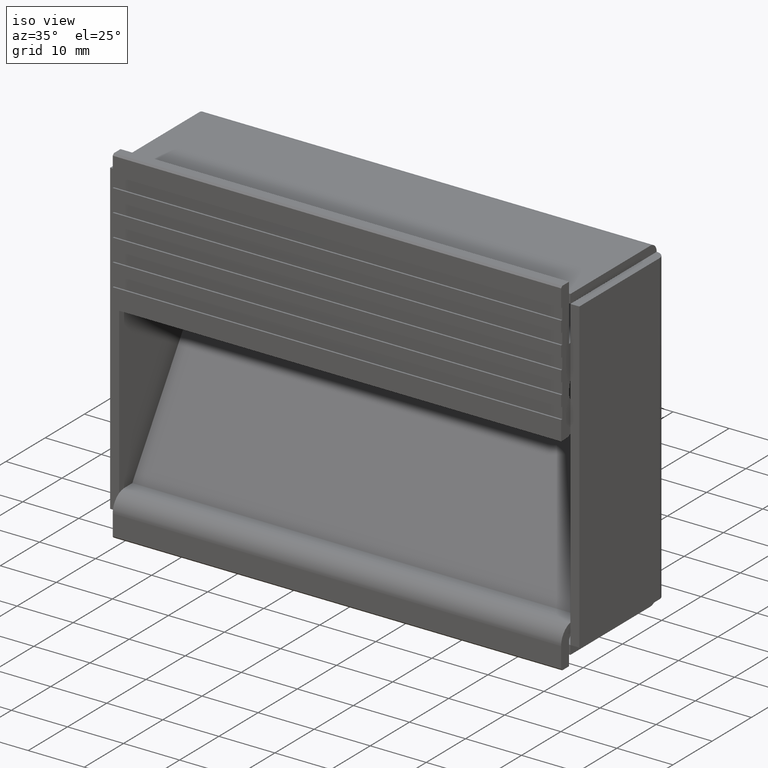
[diagram: clean part render]
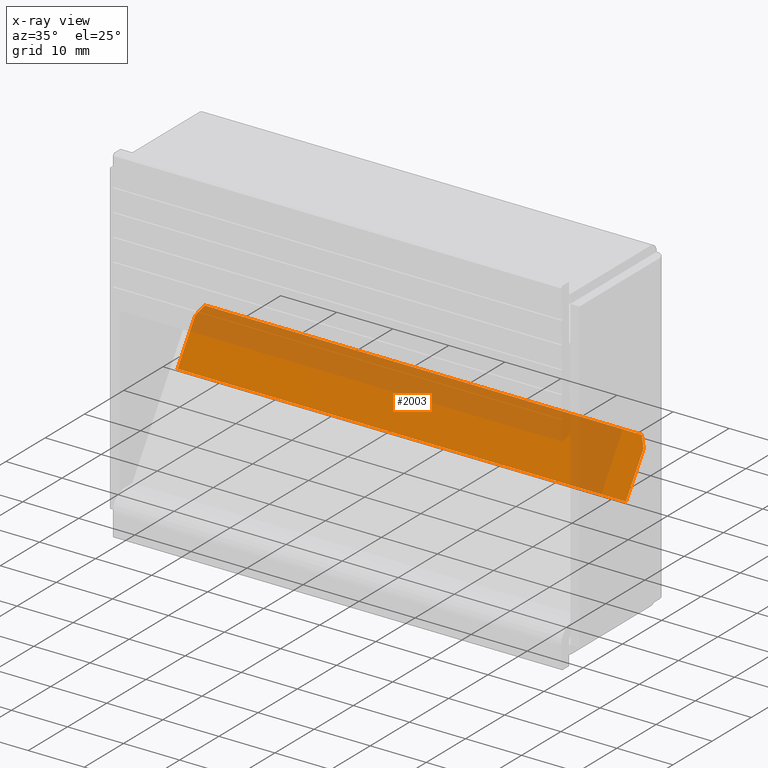
[diagram: x-ray — body ghosted, one internal face saturated and labeled with its STEP entity id]
A machine part, iso view, then the same camera in x-ray: the body is ghosted and one INTERNAL B-rep face — a face not visible from any outside direction — is saturated and labeled: STEP entity #2003.
In plain terms, the highlighted face is a freeform B-spline surface patch.
Its self-contained STEP definition (entity closure, byte-faithful):
#793=CARTESIAN_POINT('',(-40.0,19.0,27.872124824764750));
#794=VERTEX_POINT('',#793);
#795=CARTESIAN_POINT('',(-39.0,20.0,29.405457999999950));
#796=VERTEX_POINT('',#795);
#797=CARTESIAN_POINT('',(-40.0,19.0,27.872124824764750));
#798=CARTESIAN_POINT('',(-39.0,20.0,29.405457999999950));
#799=QUASI_UNIFORM_CURVE('',1,(#797,#798),.UNSPECIFIED.,.F.,.U.);
#800=EDGE_CURVE('',#794,#796,#799,.T.);
#865=CARTESIAN_POINT('',(39.0,20.0,29.405457999999999));
#866=VERTEX_POINT('',#865);
#867=CARTESIAN_POINT('',(40.0,19.0,27.872124824764800));
#868=VERTEX_POINT('',#867);
#869=CARTESIAN_POINT('',(39.0,20.0,29.405457999999999));
#870=CARTESIAN_POINT('',(40.0,19.0,27.872124824764800));
#871=QUASI_UNIFORM_CURVE('',1,(#869,#870),.UNSPECIFIED.,.F.,.U.);
#872=EDGE_CURVE('',#866,#868,#871,.T.);
#945=CARTESIAN_POINT('',(40.0,14.518179000000099,21.0));
#946=VERTEX_POINT('',#945);
#952=CARTESIAN_POINT('',(40.0,14.518179000000099,21.0));
#953=CARTESIAN_POINT('',(40.0,19.0,27.872124824764800));
#954=QUASI_UNIFORM_CURVE('',1,(#952,#953),.UNSPECIFIED.,.F.,.U.);
#955=EDGE_CURVE('',#946,#868,#954,.T.);
#1368=CARTESIAN_POINT('',(-40.0,14.518179000000099,21.0));
#1369=VERTEX_POINT('',#1368);
#1786=CARTESIAN_POINT('',(-40.0,14.518179000000099,21.0));
#1787=CARTESIAN_POINT('',(-40.0,19.0,27.872124824764750));
#1788=QUASI_UNIFORM_CURVE('',1,(#1786,#1787),.UNSPECIFIED.,.F.,.U.);
#1789=EDGE_CURVE('',#1369,#794,#1788,.T.);
#1965=CARTESIAN_POINT('',(-39.0,20.0,29.405457999999950));
#1966=CARTESIAN_POINT('',(39.0,20.0,29.405457999999999));
#1967=QUASI_UNIFORM_CURVE('',1,(#1965,#1966),.UNSPECIFIED.,.F.,.U.);
#1968=EDGE_CURVE('',#796,#866,#1967,.T.);
#1986=CARTESIAN_POINT('',(-43.995999844944492,14.244362000215521,20.580147310286979));
#1987=CARTESIAN_POINT('',(-43.995999844944492,20.273817097807189,29.825310840014311));
#1988=CARTESIAN_POINT('',(43.996001990711697,14.244362000215521,20.580147310286979));
#1989=CARTESIAN_POINT('',(43.996001990711697,20.273817097807189,29.825310840014311));
#1990=B_SPLINE_SURFACE_WITH_KNOTS('',1,1,((#1986,#1988),(#1987,#1989)),.UNSPECIFIED.,.F.,.F.,.U.,(2,2),(2,2),(0.0,11.037543996074239),(0.0,87.992001835656183),.UNSPECIFIED.);
#1991=ORIENTED_EDGE('',*,*,#1968,.T.);
#1992=ORIENTED_EDGE('',*,*,#872,.T.);
#1993=ORIENTED_EDGE('',*,*,#955,.F.);
#1994=CARTESIAN_POINT('',(-40.0,14.518179000000099,21.0));
#1995=CARTESIAN_POINT('',(40.0,14.518179000000099,21.0));
#1996=QUASI_UNIFORM_CURVE('',1,(#1994,#1995),.UNSPECIFIED.,.F.,.U.);
#1997=EDGE_CURVE('',#1369,#946,#1996,.T.);
#1998=ORIENTED_EDGE('',*,*,#1997,.F.);
#1999=ORIENTED_EDGE('',*,*,#1789,.T.);
#2000=ORIENTED_EDGE('',*,*,#800,.T.);
#2001=EDGE_LOOP('',(#1991,#1992,#1993,#1998,#1999,#2000));
#2002=FACE_OUTER_BOUND('',#2001,.T.);
#2003=ADVANCED_FACE('',(#2002),#1990,.T.);